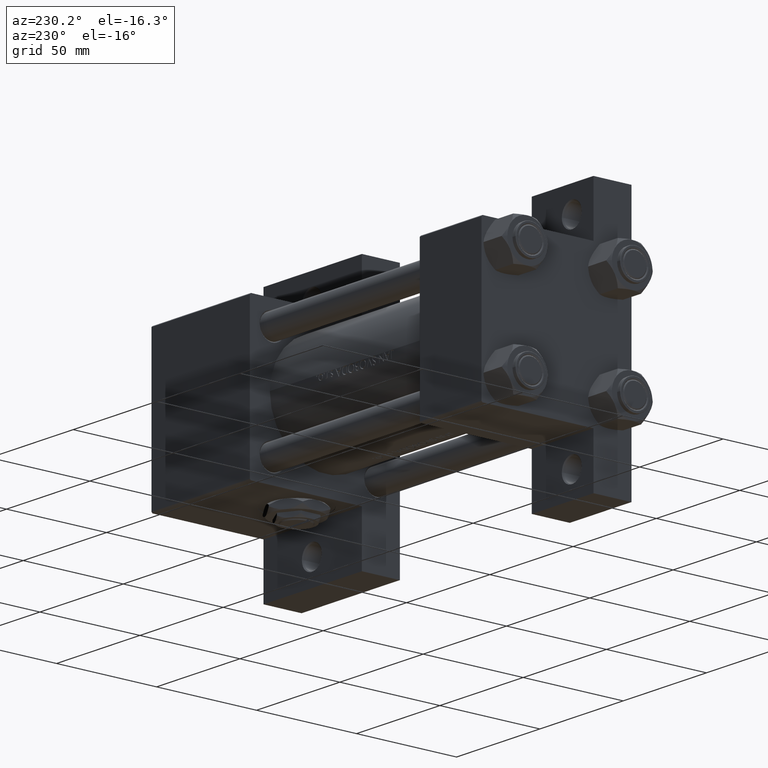
[diagram: clean part render]
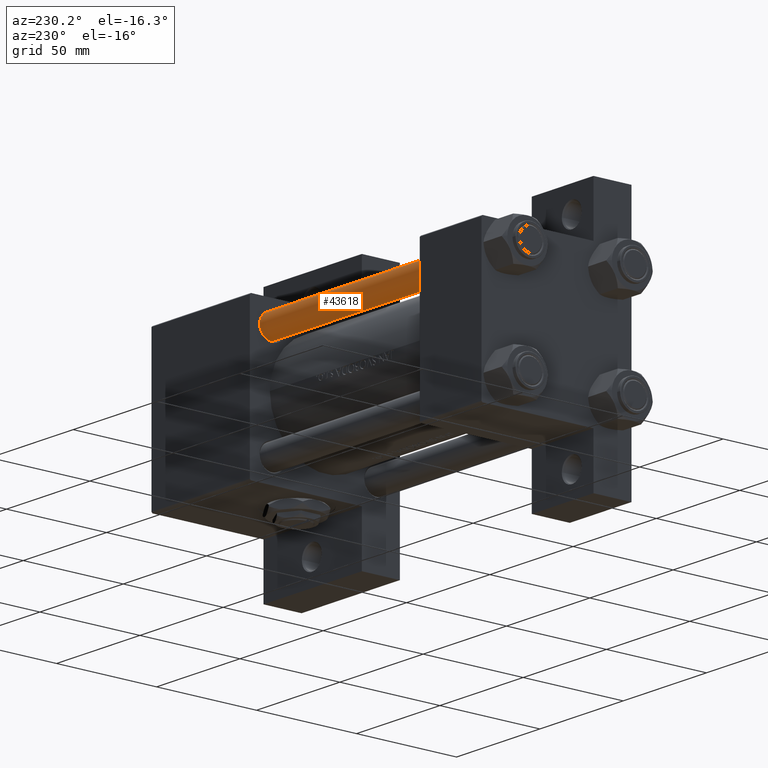
[diagram: same view with one face highlighted and labeled with its STEP entity id]
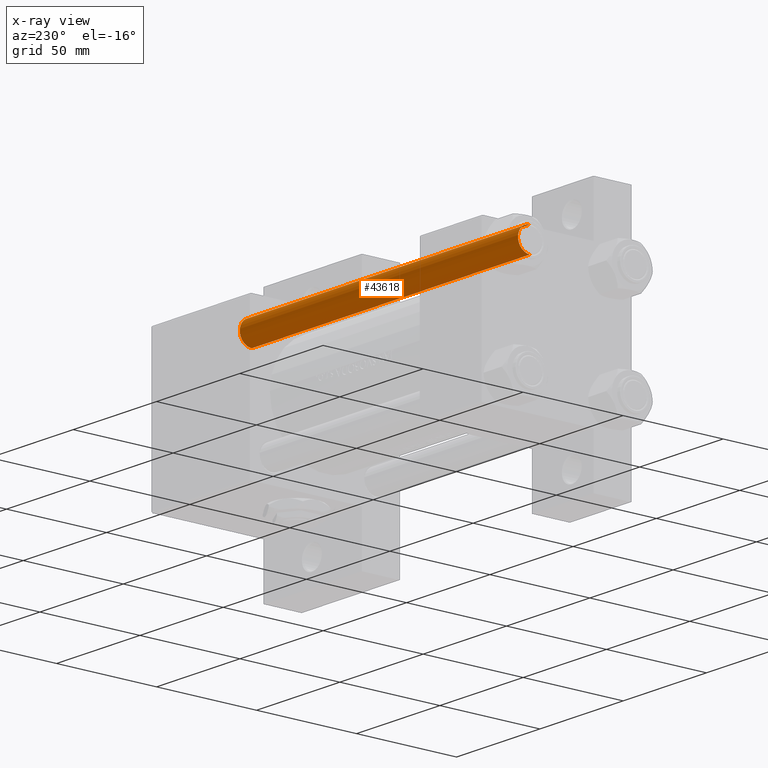
[diagram: x-ray of the same camera — body ghosted, the highlighted face saturated]
A machine part, auxiliary view. The second image highlights one B-rep face of the part: STEP entity #43618.
The next image is the same camera in x-ray: the body ghosted, the highlighted face saturated — about 0% of this face is hidden behind the body in this view.
In plain terms, the highlighted cylindrical surface (edge-blend (fillet) strip) has radius 6 mm, axis along (-1, -0, -0).
Its self-contained STEP definition (entity closure, byte-faithful):
#1082 = DIRECTION ( 'NONE',  ( 0.000000000000000000, 0.000000000000000000, -1.000000000000000000 ) ) ;
#1169 = CIRCLE ( 'NONE', #25847, 6.000000000000000888 ) ;
#3024 = AXIS2_PLACEMENT_3D ( 'NONE', #24168, #47081, #43334 ) ;
#4755 = FACE_OUTER_BOUND ( 'NONE', #18962, .T. ) ;
#4995 = CYLINDRICAL_SURFACE ( 'NONE', #3024, 6.000000000000000888 ) ;
#5281 = ORIENTED_EDGE ( 'NONE', *, *, #42605, .T. ) ;
#7637 = VERTEX_POINT ( 'NONE', #33401 ) ;
#7759 = VERTEX_POINT ( 'NONE', #9196 ) ;
#9196 = CARTESIAN_POINT ( 'NONE',  ( 6.000000000000000888, 7.347880794884119736E-16, 167.5000000000001137 ) ) ;
#9272 = DIRECTION ( 'NONE',  ( -0.000000000000000000, -0.000000000000000000, -1.000000000000000000 ) ) ;
#14240 = DIRECTION ( 'NONE',  ( 1.000000000000000000, 0.000000000000000000, 0.000000000000000000 ) ) ;
#14722 = EDGE_CURVE ( 'NONE', #28185, #7759, #1169, .T. ) ;
#18962 = EDGE_LOOP ( 'NONE', ( #30837, #31769, #5281, #22744 ) ) ;
#22744 = ORIENTED_EDGE ( 'NONE', *, *, #37606, .F. ) ;
#23977 = CARTESIAN_POINT ( 'NONE',  ( 0.000000000000000000, 0.000000000000000000, 167.5000000000001137 ) ) ;
#24168 = CARTESIAN_POINT ( 'NONE',  ( 0.000000000000000000, 0.000000000000000000, 168.0000000000000000 ) ) ;
#25847 = AXIS2_PLACEMENT_3D ( 'NONE', #23977, #1082, #38442 ) ;
#26825 = EDGE_CURVE ( 'NONE', #7759, #27534, #42692, .T. ) ;
#27534 = VERTEX_POINT ( 'NONE', #47903 ) ;
#28185 = VERTEX_POINT ( 'NONE', #43789 ) ;
#28207 = CARTESIAN_POINT ( 'NONE',  ( -6.000000000000000888, 0.000000000000000000, 168.0000000000000000 ) ) ;
#30837 = ORIENTED_EDGE ( 'NONE', *, *, #14722, .T. ) ;
#31769 = ORIENTED_EDGE ( 'NONE', *, *, #26825, .T. ) ;
#31937 = LINE ( 'NONE', #28207, #38713 ) ;
#33401 = CARTESIAN_POINT ( 'NONE',  ( -6.000000000000000888, 0.000000000000000000, 0.5000000000001392220 ) ) ;
#37606 = EDGE_CURVE ( 'NONE', #28185, #7637, #31937, .T. ) ;
#38442 = DIRECTION ( 'NONE',  ( 1.000000000000000000, 0.000000000000000000, 0.000000000000000000 ) ) ;
#38473 = VECTOR ( 'NONE', #38720, 1000.000000000000000 ) ;
#38713 = VECTOR ( 'NONE', #9272, 1000.000000000000000 ) ;
#38720 = DIRECTION ( 'NONE',  ( -0.000000000000000000, -0.000000000000000000, -1.000000000000000000 ) ) ;
#42605 = EDGE_CURVE ( 'NONE', #27534, #7637, #44342, .T. ) ;
#42692 = LINE ( 'NONE', #43183, #38473 ) ;
#43183 = CARTESIAN_POINT ( 'NONE',  ( 6.000000000000000888, 7.347880794884119736E-16, 168.0000000000000000 ) ) ;
#43334 = DIRECTION ( 'NONE',  ( -1.000000000000000000, 0.000000000000000000, 0.000000000000000000 ) ) ;
#43618 = ADVANCED_FACE ( 'NONE', ( #4755 ), #4995, .T. ) ;
#43789 = CARTESIAN_POINT ( 'NONE',  ( -6.000000000000000888, 0.000000000000000000, 167.5000000000001137 ) ) ;
#44342 = CIRCLE ( 'NONE', #47529, 6.000000000000000888 ) ;
#44362 = CARTESIAN_POINT ( 'NONE',  ( 0.000000000000000000, 0.000000000000000000, 0.5000000000001392220 ) ) ;
#47081 = DIRECTION ( 'NONE',  ( -0.000000000000000000, -0.000000000000000000, -1.000000000000000000 ) ) ;
#47529 = AXIS2_PLACEMENT_3D ( 'NONE', #44362, #48362, #14240 ) ;
#47903 = CARTESIAN_POINT ( 'NONE',  ( 6.000000000000000888, 7.347880794884119736E-16, 0.5000000000001392220 ) ) ;
#48362 = DIRECTION ( 'NONE',  ( -0.000000000000000000, -0.000000000000000000, 1.000000000000000000 ) ) ;